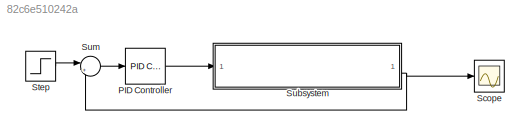
MODEL slx_82c6e510242a
KIND model
CONFIG AbsTol = auto
CONFIG EnableMultiTasking = off
CONFIG FixedStep = auto
CONFIG MaxStep = auto
CONFIG MinStep = auto
CONFIG RelTol = 1e-3
CONFIG SampleTimeConstraint = Unconstrained
CONFIG SolverName = VariableStepAuto
CONFIG StartTime = 0.0
CONFIG StopTime = 0.3
BLOCK [Reference] PID Controller  REF=slpidlib/PID Controller
  LibrarySourceBlock = simulink/Continuous/PID Controller
  SourceBlock = slpidlib/PID Controller
  SourceType = PID 1dof
BLOCK [Scope] Scope
  Floating = off
  NumInputPorts = 1
  ScopeSpecificationString = Simulink.scopes.TimeScopeBlockCfg('CurrentConfiguration', extmgr.ConfigurationSet(extmgr.Configuration('Core','General UI',true),extmgr.Configuration('Core','Source UI',true),extmgr.Configuration('Sources','WiredSimulink',true),extmgr.Configuration('Visuals','Time Domain',true,'SerializedDisplays',{struct('MinYLimReal','-0.13336','MaxYLimReal','1.2002','YLabelReal','','MinYLimMag','0.00000','MaxYL...<+1357ch>
BLOCK [Step] Step
  SampleTime = 0
  Time = 0
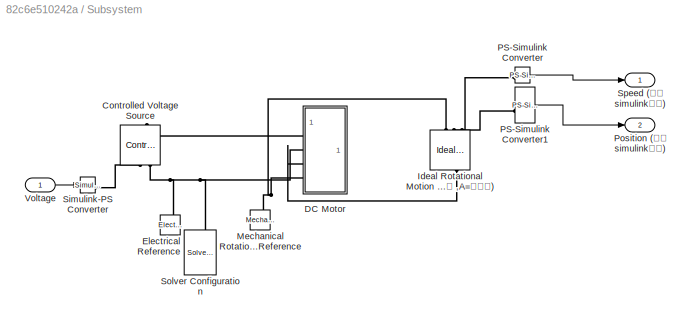
BLOCK [SubSystem] Subsystem
BLOCK [Reference] Subsystem/Controlled Voltage Source  REF=fl_lib/Electrical/Electrical Sources/Controlled Voltage
Source
  NameLocation = right
  SourceBlock = fl_lib/Electrical/Electrical Sources/Controlled Voltage\nSource
  SourceType = Controlled Voltage\nSource
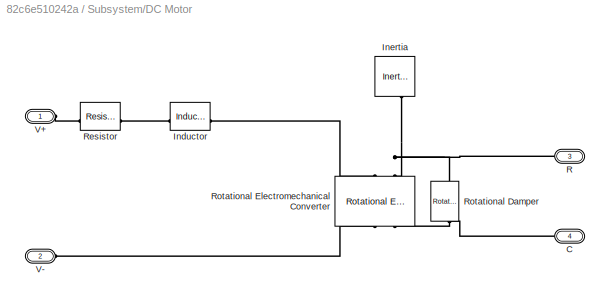
BLOCK [SubSystem] Subsystem/DC Motor
  NameLocation = right
BLOCK [PMIOPort] Subsystem/DC Motor/C
  NameLocation = top
  Port = 4
  Side = Left
BLOCK [Reference] Subsystem/DC Motor/Inductor  REF=fl_lib/Electrical/Electrical Elements/Inductor
  SourceBlock = fl_lib/Electrical/Electrical Elements/Inductor
  SourceType = Inductor
BLOCK [Reference] Subsystem/DC Motor/Inertia  REF=fl_lib/Mechanical/Rotational Elements/Inertia
  NameLocation = left
  SourceBlock = fl_lib/Mechanical/Rotational Elements/Inertia
  SourceType = Inertia
BLOCK [PMIOPort] Subsystem/DC Motor/R
  NameLocation = top
  Port = 3
  Side = Left
BLOCK [Reference] Subsystem/DC Motor/Resistor  REF=fl_lib/Electrical/Electrical Elements/Resistor
  SourceBlock = fl_lib/Electrical/Electrical Elements/Resistor
  SourceType = Resistor
BLOCK [Reference] Subsystem/DC Motor/Rotational Damper  REF=fl_lib/Mechanical/Rotational Elements/Rotational Damper
  NameLocation = left
  SourceBlock = fl_lib/Mechanical/Rotational Elements/Rotational Damper
  SourceType = Rotational Damper
BLOCK [Reference] Subsystem/DC Motor/Rotational Electromechanical Converter  REF=fl_lib/Electrical/Electrical Elements/Rotational
Electromechanical
Converter
  NameLocation = right
  SourceBlock = fl_lib/Electrical/Electrical Elements/Rotational\nElectromechanical\nConverter
  SourceType = Rotational\nElectromechanical\nConverter
BLOCK [PMIOPort] Subsystem/DC Motor/V+
  Side = Left
BLOCK [PMIOPort] Subsystem/DC Motor/V-
  Port = 2
  Side = Left
BLOCK [Reference] Subsystem/Electrical Reference  REF=fl_lib/Electrical/Electrical Elements/Electrical Reference
  NameLocation = right
  SourceBlock = fl_lib/Electrical/Electrical Elements/Electrical Reference
  SourceType = Electrical Reference
BLOCK [Reference] Subsystem/Ideal Rotational Motion Sensor (W=스피드 ,A=포지션)  REF=fl_lib/Mechanical/Mechanical Sensors/Ideal Rotational
Motion Sensor
  NameLocation = right
  SourceBlock = fl_lib/Mechanical/Mechanical Sensors/Ideal Rotational\nMotion Sensor
  SourceType = Ideal Rotational\nMotion Sensor
BLOCK [Reference] Subsystem/Mechanical Rotational Reference  REF=fl_lib/Mechanical/Rotational Elements/Mechanical
Rotational Reference
  NameLocation = right
  SourceBlock = fl_lib/Mechanical/Rotational Elements/Mechanical\nRotational Reference
  SourceType = Mechanical\nRotational Reference
BLOCK [Reference] Subsystem/PS-Simulink Converter  REF=nesl_utility/PS-Simulink
Converter
  SourceBlock = nesl_utility/PS-Simulink\nConverter
  SourceType = PS-Simulink\nConverter
BLOCK [Reference] Subsystem/PS-Simulink Converter1  REF=nesl_utility/PS-Simulink
Converter
  SourceBlock = nesl_utility/PS-Simulink\nConverter
  SourceType = PS-Simulink\nConverter
BLOCK [Outport] Subsystem/Position (얘는 simulink소자)
  Port = 2
BLOCK [Reference] Subsystem/Simulink-PS Converter  REF=nesl_utility/Simulink-PS
Converter
  SourceBlock = nesl_utility/Simulink-PS\nConverter
  SourceType = Simulink-PS\nConverter
BLOCK [Reference] Subsystem/Solver Configuration  REF=nesl_utility/Solver
Configuration
  NameLocation = right
  SourceBlock = nesl_utility/Solver\nConfiguration
  SourceType = Solver\nConfiguration
BLOCK [Outport] Subsystem/Speed (얘는 simulink소자)
BLOCK [Inport] Subsystem/Voltage
BLOCK [Sum] Sum
  Inputs = |+-
LINE PID Controller:1 -> Subsystem:1
LINE Step:1 -> Sum:1
LINE Subsystem/PS-Simulink Converter1:1 -> Subsystem/Position (얘는 simulink소자):1
LINE Subsystem/PS-Simulink Converter:1 -> Subsystem/Speed (얘는 simulink소자):1
LINE Subsystem/Voltage:1 -> Subsystem/Simulink-PS Converter:1
NET Subsystem:2 -> Scope:1, Sum:2
LINE Sum:1 -> PID Controller:1
PLINE Subsystem/Controlled Voltage Source:LConn1 -- Subsystem/DC Motor:LConn1
PLINE Subsystem/Controlled Voltage Source:RConn1 -- Subsystem/Simulink-PS Converter:RConn1
PNET net1: Subsystem/Controlled Voltage Source:RConn2 -- Subsystem/DC Motor:LConn2 -- Subsystem/Electrical Reference:LConn1 -- Subsystem/Solver Configuration:RConn1
PNET net2: Subsystem/DC Motor/C:RConn1 -- Subsystem/DC Motor/Rotational Damper:RConn1 -- Subsystem/DC Motor/Rotational Electromechanical Converter:RConn2
PLINE Subsystem/DC Motor/Inductor:LConn1 -- Subsystem/DC Motor/Resistor:RConn1
PLINE Subsystem/DC Motor/Inductor:RConn1 -- Subsystem/DC Motor/Rotational Electromechanical Converter:LConn1
PNET net3: Subsystem/DC Motor/Inertia:LConn1 -- Subsystem/DC Motor/R:RConn1 -- Subsystem/DC Motor/Rotational Damper:LConn1 -- Subsystem/DC Motor/Rotational Electromechanical Converter:LConn2
PLINE Subsystem/DC Motor/Resistor:LConn1 -- Subsystem/DC Motor/V+:RConn1
PLINE Subsystem/DC Motor/Rotational Electromechanical Converter:RConn1 -- Subsystem/DC Motor/V-:RConn1
PLINE Subsystem/DC Motor:LConn3 -- Subsystem/Ideal Rotational Motion Sensor (W=스피드 ,A=포지션):LConn1
PNET net4: Subsystem/DC Motor:LConn4 -- Subsystem/Ideal Rotational Motion Sensor (W=스피드 ,A=포지션):RConn1 -- Subsystem/Mechanical Rotational Reference:LConn1
PLINE Subsystem/Ideal Rotational Motion Sensor (W=스피드 ,A=포지션):RConn2 -- Subsystem/PS-Simulink Converter:LConn1
PLINE Subsystem/Ideal Rotational Motion Sensor (W=스피드 ,A=포지션):RConn3 -- Subsystem/PS-Simulink Converter1:LConn1
note: NET lines group one-source signal fan-out (src -> all destinations, sorted); 1:1 wires keep LINE; PNET lines group multi-terminal physical nets as a canonical sorted terminal list (undirected conserving connections); 2-terminal nets keep the pairwise PLINE form
